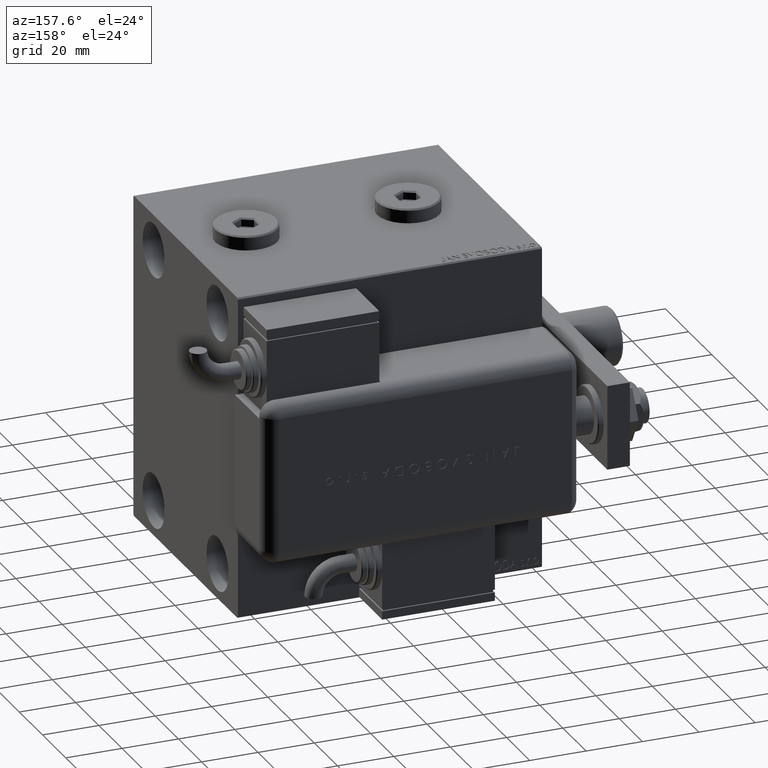
[diagram: clean part render]
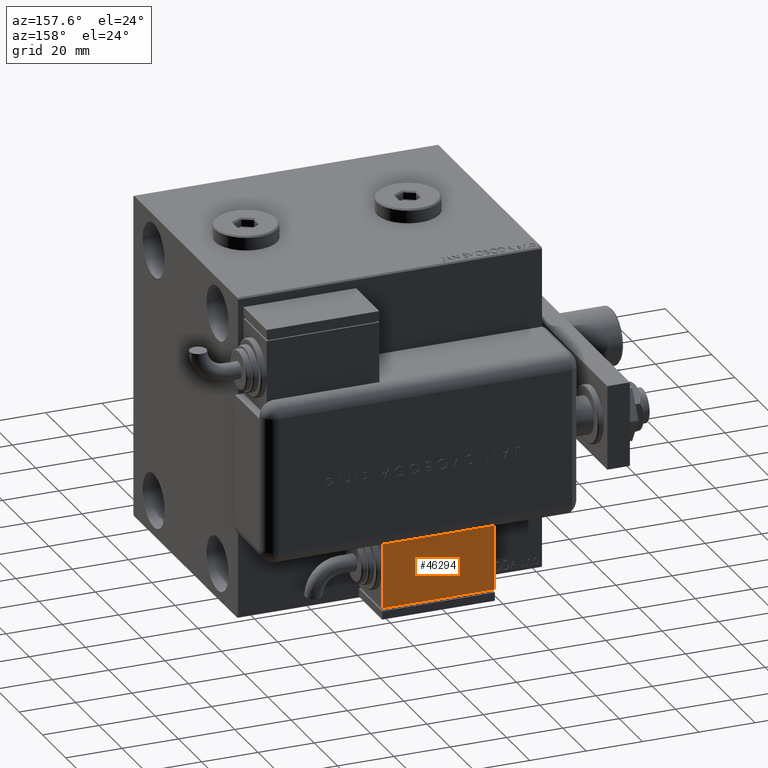
[diagram: same view with one face highlighted and labeled with its STEP entity id]
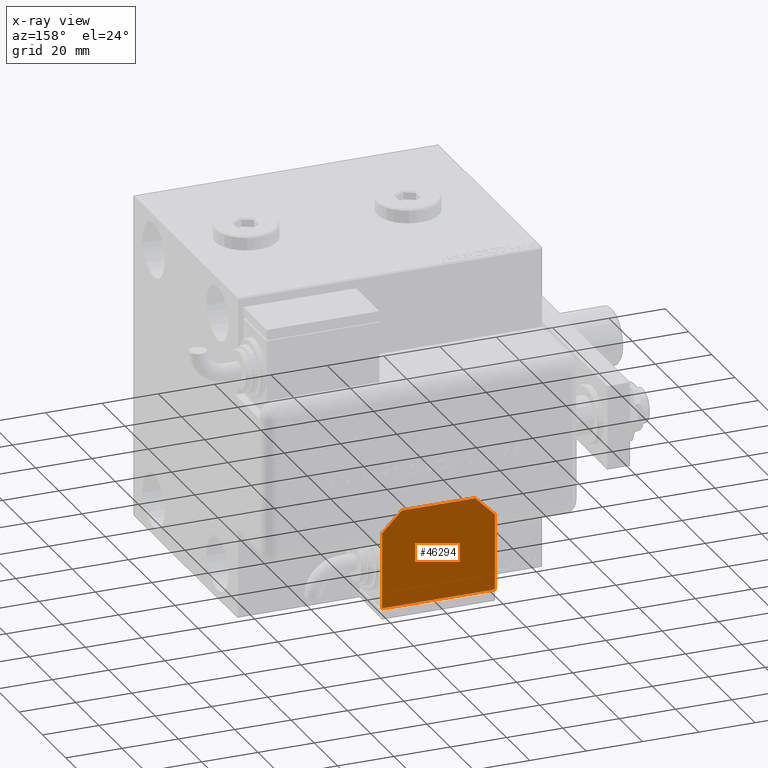
[diagram: x-ray of the same camera — body ghosted, the highlighted face saturated]
A machine part, auxiliary view. The second image highlights one B-rep face of the part: STEP entity #46294.
The next image is the same camera in x-ray: the body ghosted, the highlighted face saturated — about 0% of this face is hidden behind the body in this view.
In plain terms, the highlighted planar face has unit normal (-0, 1, -0).
Its self-contained STEP definition (entity closure, byte-faithful):
#1298 = ORIENTED_EDGE ( 'NONE', *, *, #43224, .T. ) ;
#1942 = DIRECTION ( 'NONE',  ( -1.284980352575421081E-16, -1.000000000000000000, -0.000000000000000000 ) ) ;
#2245 = LINE ( 'NONE', #58607, #27927 ) ;
#3264 = CARTESIAN_POINT ( 'NONE',  ( -19.99999999999994316, -13.49999999999996092, 10.00000000000000000 ) ) ;
#3478 = DIRECTION ( 'NONE',  ( -0.7071067811865356934, -0.7071067811865593411, -0.000000000000000000 ) ) ;
#3610 = VECTOR ( 'NONE', #23418, 1000.000000000000114 ) ;
#4924 = EDGE_CURVE ( 'NONE', #12170, #53195, #18861, .T. ) ;
#8013 = FACE_OUTER_BOUND ( 'NONE', #11002, .T. ) ;
#8920 = PLANE ( 'NONE',  #20567 ) ;
#9507 = CARTESIAN_POINT ( 'NONE',  ( 20.00000000000005329, -13.49999999999996092, 10.00000000000000000 ) ) ;
#10469 = EDGE_CURVE ( 'NONE', #47608, #12170, #27675, .T. ) ;
#11002 = EDGE_LOOP ( 'NONE', ( #1298, #38626, #43785, #17570, #12178, #21894, #18560 ) ) ;
#12170 = VERTEX_POINT ( 'NONE', #14085 ) ;
#12178 = ORIENTED_EDGE ( 'NONE', *, *, #59445, .T. ) ;
#14085 = CARTESIAN_POINT ( 'NONE',  ( 20.00000000000005329, -13.49999999999996092, 10.00000000000000000 ) ) ;
#14599 = CARTESIAN_POINT ( 'NONE',  ( -19.99999999999994316, -13.49999999999996092, 10.00000000000000000 ) ) ;
#15904 = DIRECTION ( 'NONE',  ( -1.000000000000000000, 0.000000000000000000, 0.000000000000000000 ) ) ;
#17354 = DIRECTION ( 'NONE',  ( 1.000000000000000000, 0.000000000000000000, -0.000000000000000000 ) ) ;
#17570 = ORIENTED_EDGE ( 'NONE', *, *, #22333, .T. ) ;
#18560 = ORIENTED_EDGE ( 'NONE', *, *, #4924, .T. ) ;
#18861 = LINE ( 'NONE', #9507, #40385 ) ;
#20567 = AXIS2_PLACEMENT_3D ( 'NONE', #27588, #31961, #17354 ) ;
#21418 = EDGE_CURVE ( 'NONE', #41531, #23956, #56721, .T. ) ;
#21894 = ORIENTED_EDGE ( 'NONE', *, *, #10469, .T. ) ;
#22333 = EDGE_CURVE ( 'NONE', #23956, #23222, #28629, .T. ) ;
#23146 = CARTESIAN_POINT ( 'NONE',  ( -10.00000000000004086, 20.50000000000009592, 10.00000000000000000 ) ) ;
#23222 = VERTEX_POINT ( 'NONE', #32689 ) ;
#23418 = DIRECTION ( 'NONE',  ( -0.7071067811865479058, 0.7071067811865470176, -0.000000000000000000 ) ) ;
#23956 = VERTEX_POINT ( 'NONE', #29643 ) ;
#27334 = CARTESIAN_POINT ( 'NONE',  ( 20.00000000000005684, 13.50000000000003730, 10.00000000000000000 ) ) ;
#27588 = CARTESIAN_POINT ( 'NONE',  ( 0.000000000000000000, 0.000000000000000000, 10.00000000000000000 ) ) ;
#27675 = LINE ( 'NONE', #14599, #61499 ) ;
#27927 = VECTOR ( 'NONE', #1942, 1000.000000000000000 ) ;
#28629 = LINE ( 'NONE', #52601, #57626 ) ;
#29643 = CARTESIAN_POINT ( 'NONE',  ( -19.99999999999993960, 13.49999999999986500, 10.00000000000000000 ) ) ;
#31961 = DIRECTION ( 'NONE',  ( 0.000000000000000000, 0.000000000000000000, 1.000000000000000000 ) ) ;
#32689 = CARTESIAN_POINT ( 'NONE',  ( -19.99999999999993960, 2.569960705150834076E-15, 10.00000000000000000 ) ) ;
#37920 = CARTESIAN_POINT ( 'NONE',  ( 12.99999999999999112, 20.50000000000009592, 10.00000000000000000 ) ) ;
#38626 = ORIENTED_EDGE ( 'NONE', *, *, #45732, .T. ) ;
#39532 = LINE ( 'NONE', #23146, #55385 ) ;
#40385 = VECTOR ( 'NONE', #43435, 1000.000000000000000 ) ;
#41531 = VERTEX_POINT ( 'NONE', #52280 ) ;
#42309 = DIRECTION ( 'NONE',  ( 1.000000000000000000, 0.000000000000000000, 0.000000000000000000 ) ) ;
#43224 = EDGE_CURVE ( 'NONE', #53195, #55147, #60798, .T. ) ;
#43269 = DIRECTION ( 'NONE',  ( -1.284980352575421081E-16, -1.000000000000000000, -0.000000000000000000 ) ) ;
#43435 = DIRECTION ( 'NONE',  ( 1.284980352575412699E-16, 1.000000000000000000, 0.000000000000000000 ) ) ;
#43785 = ORIENTED_EDGE ( 'NONE', *, *, #21418, .T. ) ;
#45732 = EDGE_CURVE ( 'NONE', #55147, #41531, #39532, .T. ) ;
#46294 = ADVANCED_FACE ( 'NONE', ( #8013 ), #8920, .T. ) ;
#47608 = VERTEX_POINT ( 'NONE', #3264 ) ;
#49614 = VECTOR ( 'NONE', #3478, 1000.000000000000000 ) ;
#51758 = CARTESIAN_POINT ( 'NONE',  ( 9.999999999999984013, 23.50000000000009592, 10.00000000000000000 ) ) ;
#52280 = CARTESIAN_POINT ( 'NONE',  ( -12.99999999999994138, 20.50000000000009592, 10.00000000000000000 ) ) ;
#52601 = CARTESIAN_POINT ( 'NONE',  ( -19.99999999999994316, -13.49999999999996092, 10.00000000000000000 ) ) ;
#53195 = VERTEX_POINT ( 'NONE', #27334 ) ;
#55147 = VERTEX_POINT ( 'NONE', #37920 ) ;
#55385 = VECTOR ( 'NONE', #15904, 1000.000000000000000 ) ;
#56404 = CARTESIAN_POINT ( 'NONE',  ( -19.99999999999993960, 13.49999999999986500, 10.00000000000000000 ) ) ;
#56721 = LINE ( 'NONE', #56404, #49614 ) ;
#57626 = VECTOR ( 'NONE', #43269, 1000.000000000000000 ) ;
#58607 = CARTESIAN_POINT ( 'NONE',  ( -19.99999999999994316, -13.49999999999996092, 10.00000000000000000 ) ) ;
#59445 = EDGE_CURVE ( 'NONE', #23222, #47608, #2245, .T. ) ;
#60798 = LINE ( 'NONE', #51758, #3610 ) ;
#61499 = VECTOR ( 'NONE', #42309, 1000.000000000000000 ) ;